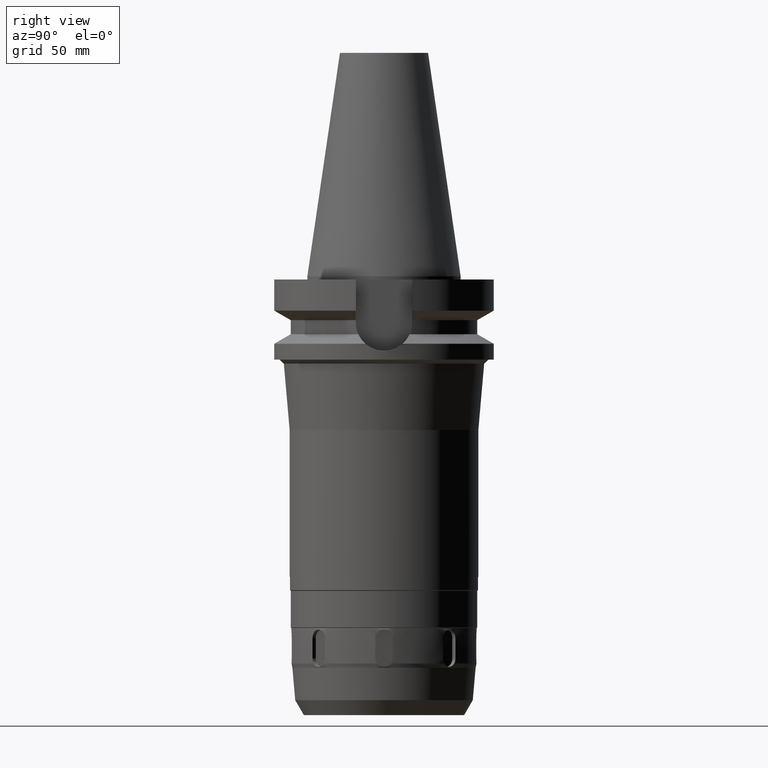
[diagram: clean part render]
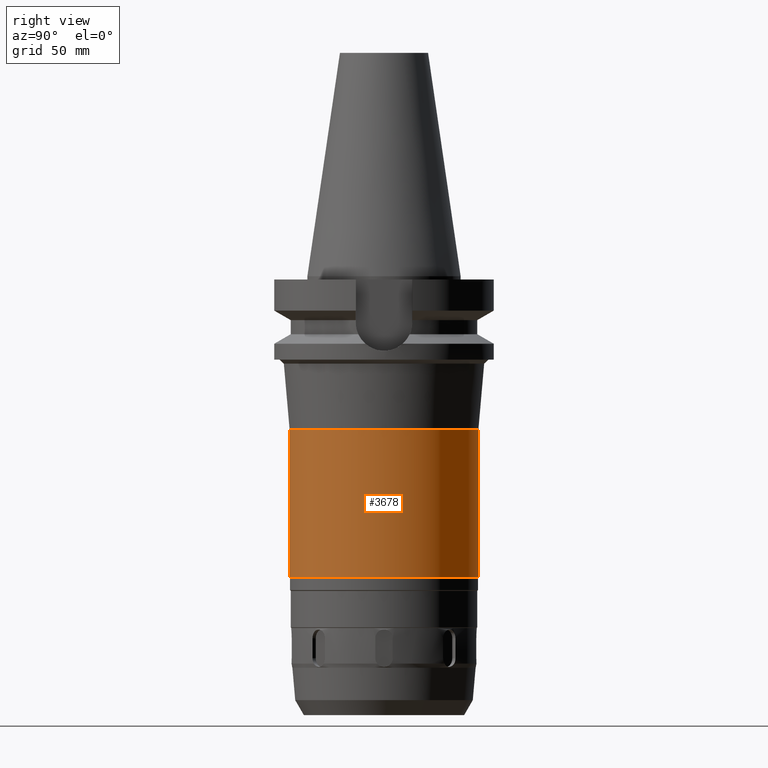
[diagram: same view with one face highlighted and labeled with its STEP entity id]
A machine part, right view. The second image highlights one B-rep face of the part: STEP entity #3678.
In plain terms, the highlighted cylindrical surface (partial cylindrical patch) has radius 43 mm, axis along (0, 0, -1).
Its self-contained STEP definition (entity closure, byte-faithful):
#1310=CARTESIAN_POINT('',(0.E0,2.656136442671E-14,-1.37E2));
#1311=DIRECTION('',(0.E0,0.E0,1.E0));
#1312=DIRECTION('',(0.E0,-1.E0,0.E0));
#1313=AXIS2_PLACEMENT_3D('',#1310,#1311,#1312);
#1342=DIRECTION('',(0.E0,-3.245165330486E-14,-1.E0));
#1343=VECTOR('',#1342,6.7E1);
#1344=CARTESIAN_POINT('',(0.E0,4.3E1,-7.E1));
#1345=LINE('',#1344,#1343);
#1349=DIRECTION('',(0.E0,3.255770445946E-14,-1.E0));
#1350=VECTOR('',#1349,6.7E1);
#1351=CARTESIAN_POINT('',(0.E0,-4.3E1,-7.E1));
#1352=LINE('',#1351,#1350);
#1378=CARTESIAN_POINT('',(0.E0,0.E0,-7.E1));
#1379=DIRECTION('',(0.E0,0.E0,-1.E0));
#1380=DIRECTION('',(0.E0,1.E0,0.E0));
#1381=AXIS2_PLACEMENT_3D('',#1378,#1379,#1380);
#2674=CARTESIAN_POINT('',(0.E0,-4.3E1,-1.37E2));
#2675=CARTESIAN_POINT('',(0.E0,4.3E1,-1.37E2));
#2676=VERTEX_POINT('',#2674);
#2677=VERTEX_POINT('',#2675);
#2678=CARTESIAN_POINT('',(0.E0,4.3E1,-7.E1));
#2679=VERTEX_POINT('',#2678);
#2680=CARTESIAN_POINT('',(0.E0,-4.3E1,-7.E1));
#2681=VERTEX_POINT('',#2680);
#3664=CARTESIAN_POINT('',(0.E0,2.656136442671E-14,1.1689E2));
#3665=DIRECTION('',(0.E0,0.E0,-1.E0));
#3666=DIRECTION('',(0.E0,-1.E0,0.E0));
#3667=AXIS2_PLACEMENT_3D('',#3664,#3665,#3666);
#3668=CYLINDRICAL_SURFACE('',#3667,4.3E1);
#3670=ORIENTED_EDGE('',*,*,#3669,.T.);
#3671=ORIENTED_EDGE('',*,*,#3653,.F.);
#3673=ORIENTED_EDGE('',*,*,#3672,.F.);
#3675=ORIENTED_EDGE('',*,*,#3674,.F.);
#3676=EDGE_LOOP('',(#3670,#3671,#3673,#3675));
#3677=FACE_OUTER_BOUND('',#3676,.F.);
#1314=CIRCLE('',#1313,4.3E1);
#1382=CIRCLE('',#1381,4.3E1);
#3653=EDGE_CURVE('',#2676,#2677,#1314,.T.);
#3669=EDGE_CURVE('',#2679,#2677,#1345,.T.);
#3672=EDGE_CURVE('',#2681,#2676,#1352,.T.);
#3674=EDGE_CURVE('',#2679,#2681,#1382,.T.);
#3678=ADVANCED_FACE('',(#3677),#3668,.T.);